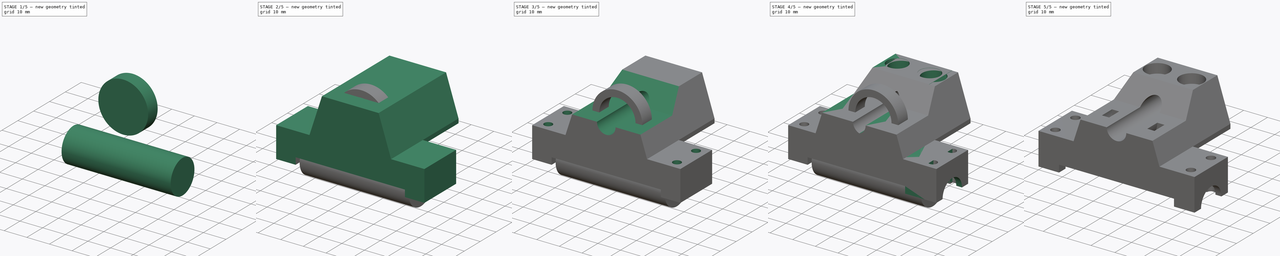
[diagram: build sequence overview — one tinted view per stage of 5, left to right]
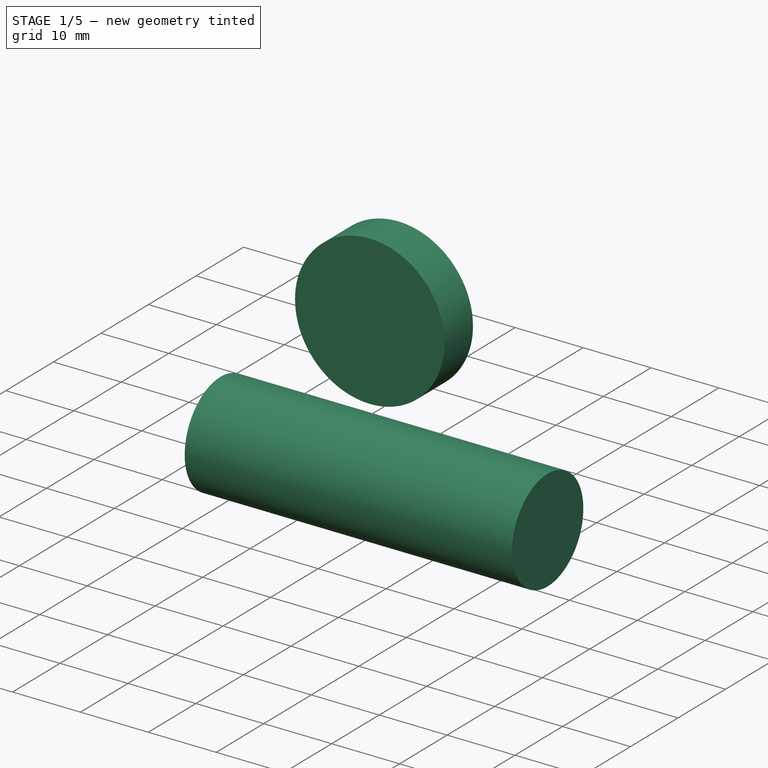
[diagram: stage 1 of 5 — iso view after this stage's code; geometry added in this stage tinted green]
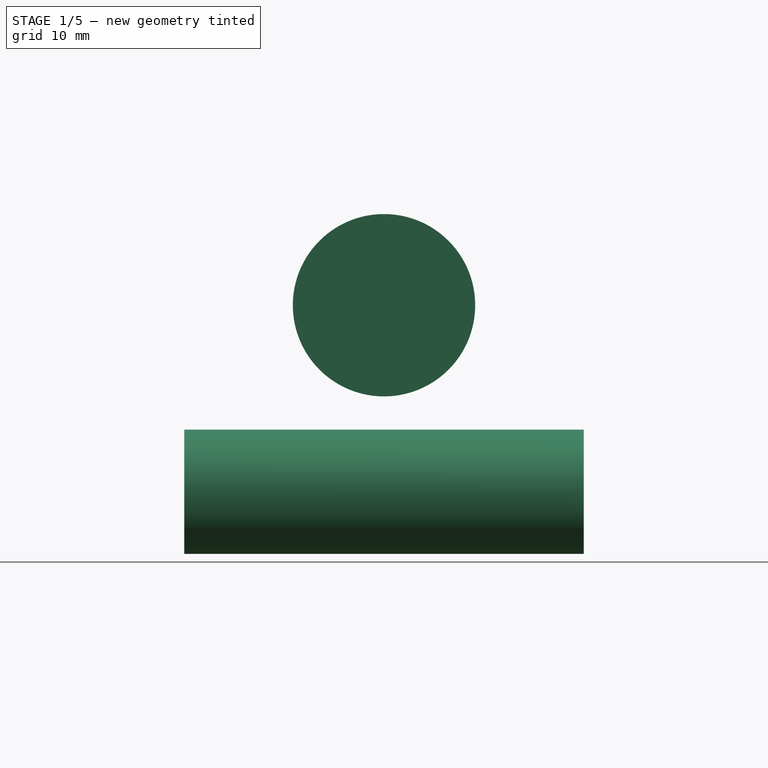
[diagram: stage 1 of 5 — front view after this stage's code; geometry added in this stage tinted green]
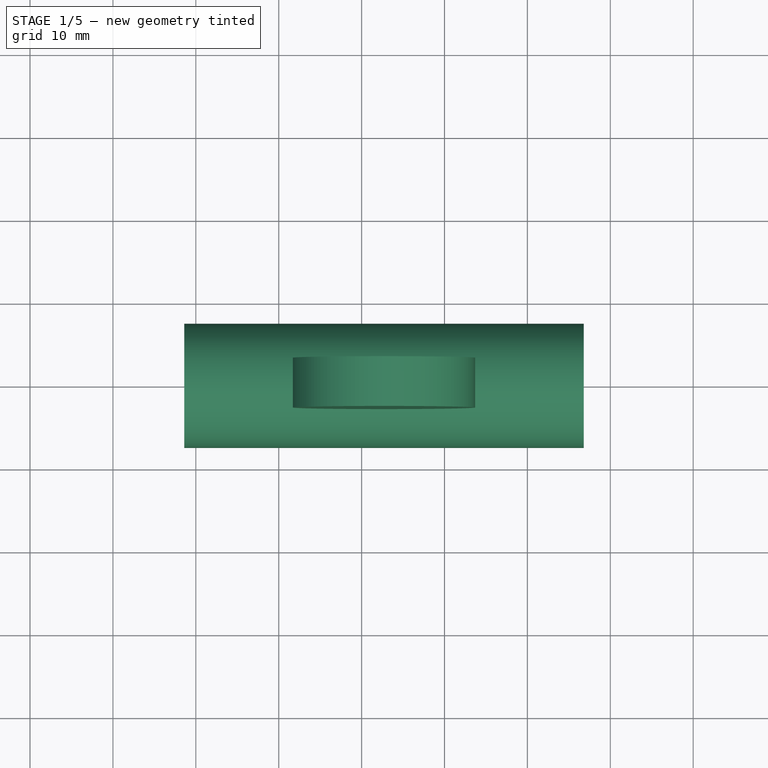
[diagram: stage 1 of 5 — top view after this stage's code; geometry added in this stage tinted green]
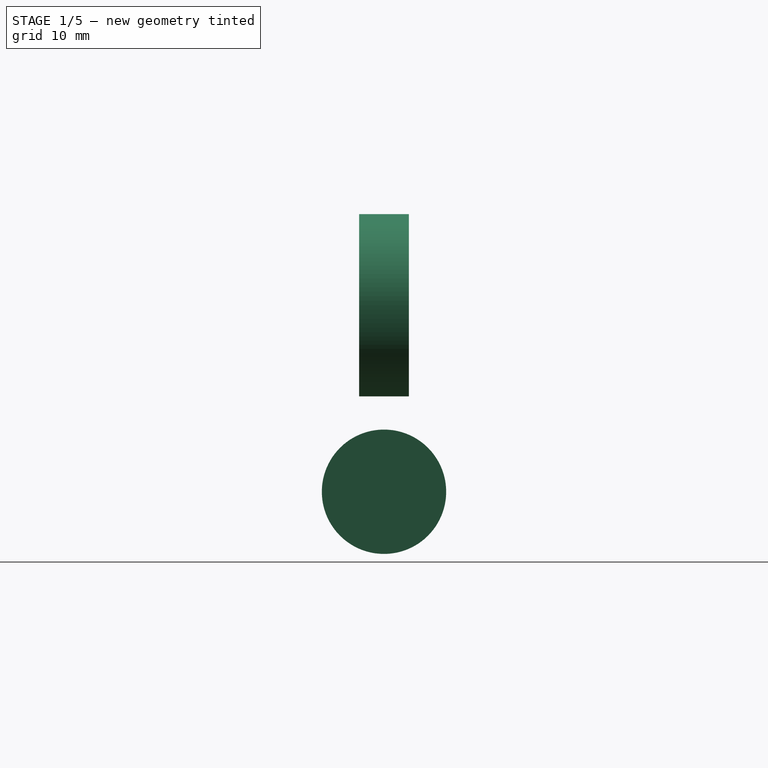
[diagram: stage 1 of 5 — right view after this stage's code; geometry added in this stage tinted green]
FCSTD DOCUMENT  (FreeCAD 0.16R6712 (Git))
Label: CustomBushingXYBlock_LM8UU
License: CC-BY 3.0
LicenseURL: http://creativecommons.org/licenses/by/3.0/
objects: Sketcher::SketchObject×8, PartDesign::Pocket×7, Part::Cylinder×3, Part::Cut×3, Part::Feature×1, PartDesign::Pad×1, Part::FeaturePython×1
note: 32 computed .brp shape members not serialized (recipe doc carries the construction recipe); baked Part::Feature solids carry a one-line shape summary decoded from their .brp

FEATURE [Part::Cylinder] Cylinder  label="Zylinder"
  Angle = 360
  Height = 6
  Placement = pos=(32.7,13,22.5) rot=(1,0,0;1.5708rad)
  Radius = 11
FEATURE [Part::Cylinder] Cylinder001  label="Zylinder001"
  Angle = 360
  Height = 6
  Placement = pos=(32.7,13,22.5) rot=(1,0,0;1.5708rad)
  Radius = 8
FEATURE [Part::Cylinder] Cylinder002  label="Zylinder002"
  Angle = 360
  Height = 48.2
  Placement = pos=(8.6,10,0) rot=(0,1,0;1.5708rad)
  Radius = 7.5
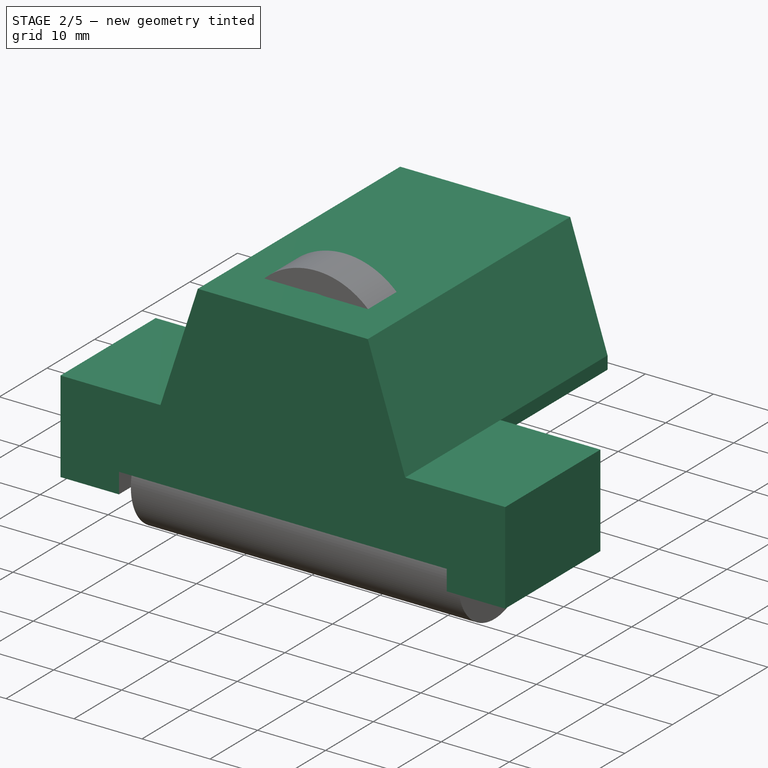
[diagram: stage 2 of 5 — iso view after this stage's code; geometry added in this stage tinted green]
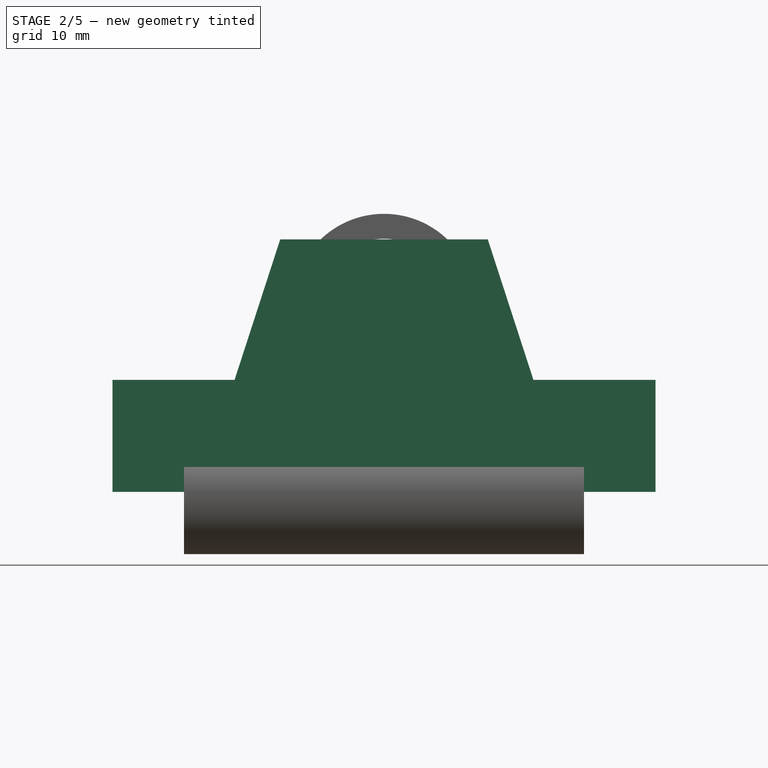
[diagram: stage 2 of 5 — front view after this stage's code; geometry added in this stage tinted green]
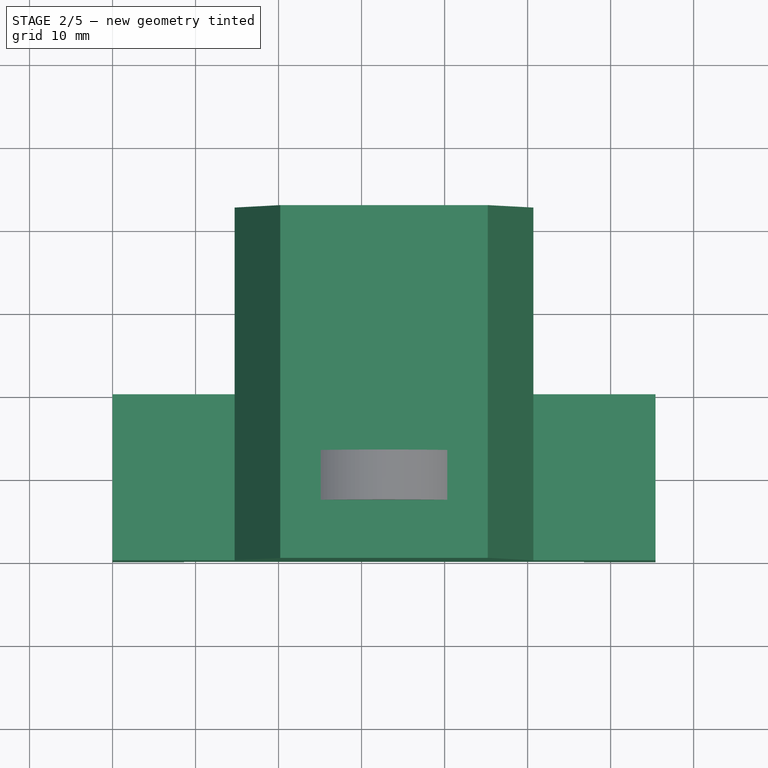
[diagram: stage 2 of 5 — top view after this stage's code; geometry added in this stage tinted green]
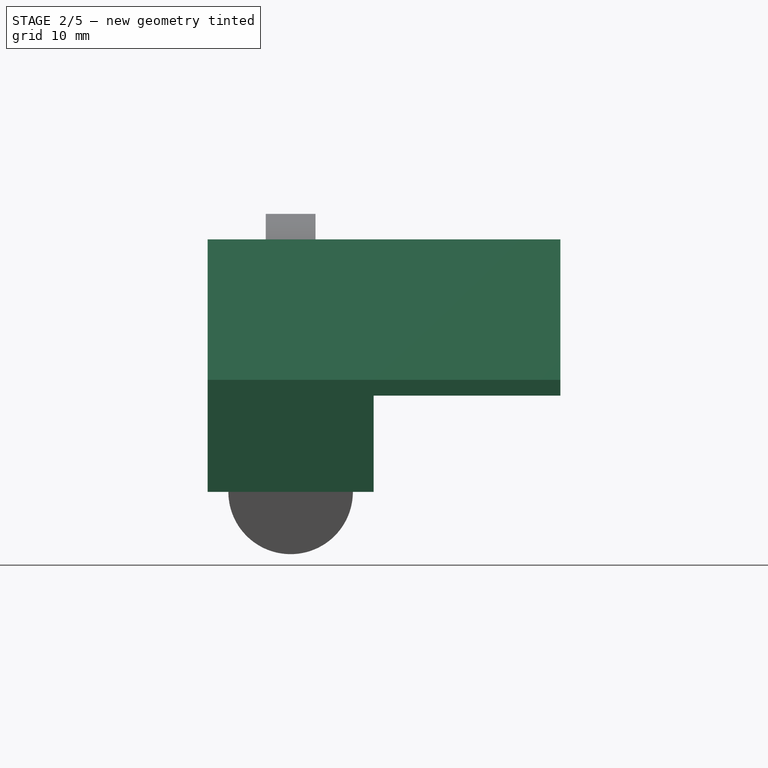
[diagram: stage 2 of 5 — right view after this stage's code; geometry added in this stage tinted green]
FEATURE [Part::Feature] Solid  label="CustomBushingXYBlockFromSTL"
  shape: bbox 60.2 x 42.5 x 30.5 mm, 736 faces (baked)
FEATURE [Sketcher::SketchObject] Sketch
  Placement = pos=(0,0,0) rot=(1,0,0;1.5708rad)
  sketch-geometry (13):
    g0: LineSegment StartX=0 StartY=0 StartZ=0 EndX=0 EndY=13.5 EndZ=0
    g1: LineSegment StartX=0 StartY=13.5 StartZ=0 EndX=14.7 EndY=13.5 EndZ=0
    g2: LineSegment StartX=14.7 StartY=13.5 StartZ=0 EndX=20.2 EndY=30.4273 EndZ=0
    g3: LineSegment StartX=20.2 StartY=30.4273 StartZ=0 EndX=45.2 EndY=30.4273 EndZ=0
    g4: LineSegment StartX=45.2 StartY=30.4273 StartZ=0 EndX=50.7 EndY=13.5 EndZ=0
    g5: LineSegment StartX=50.7 StartY=13.5 StartZ=0 EndX=65.4 EndY=13.5 EndZ=0
    g6: LineSegment StartX=65.4 StartY=13.5 StartZ=0 EndX=65.4 EndY=-2e-12 EndZ=0
    g7: LineSegment StartX=65.4 StartY=-2e-12 StartZ=0 EndX=56.8 EndY=-2e-12 EndZ=0
    g8: LineSegment StartX=56.8 StartY=-2e-12 StartZ=0 EndX=56.8 EndY=3 EndZ=0
    g9: LineSegment StartX=56.8 StartY=3 StartZ=0 EndX=8.6 EndY=3 EndZ=0
    g10: LineSegment StartX=8.6 StartY=3 StartZ=0 EndX=8.6 EndY=0 EndZ=0
    g11: LineSegment StartX=8.6 StartY=0 StartZ=0 EndX=0 EndY=0 EndZ=0
    g12: LineSegment [constr] StartX=32.7 StartY=30.4273 StartZ=0 EndX=32.7 EndY=0 EndZ=0
  constraints (37):
    c: Coincident(g0,g1)
    c: Coincident(g1,g2)
    c: Coincident(g2,g3)
    c: Coincident(g3,g4)
    c: Coincident(g4,g5)
    c: Coincident(g5,g6)
    c: Coincident(g6,g7)
    c: Coincident(g7,g8)
    c: Coincident(g8,g9)
    c: Coincident(g9,g10)
    c: Coincident(g10,g11)
    c: Coincident(g0,g11)
    c: Horizontal(g11)
    c: Horizontal(g9)
    c: Horizontal(g1)
    c: Vertical(g10)
    c: Vertical(g0)
    c: Horizontal(g5)
    c: Horizontal(g3)
    c: Horizontal(g7)
    c: Vertical(g6)
    c: Vertical(g8)
    c: Angle(g2,g1) = 1.88496
    c: Angle(g5,g4) = 1.88496
    c: DistanceX(g-1,g6) = 65.4
    c: Distance(g9) = 48.2
    c: Distance(g10) = 3
    c: DistanceX(g1,g4) = 36
    c: Distance(g3) = 25
    c: DistanceY(g0) = 13.5
    c: Coincident(g0,g-1)
    c: PointOnObject(g12,g-1)
    c: PointOnObject(g12,g3)
    c: Symmetric(g-1,g6,g12)
    c: Symmetric(g1,g4,g12)
    c: Symmetric(g2,g3,g12)
    c: Symmetric(g9,g8,g12)
FEATURE [PartDesign::Pad] Pad
  Length = 42.5
  Length2 = 100
  Placement = pos=(0,0,0) rot=(1,0,0;1.5708rad)
  Reversed = true
  Sketch = -> Sketch
  Type = 0
FEATURE [PartDesign::Pocket] Pocket
  Length = 22.5
  Placement = pos=(0,0,0) rot=(1,0,0;1.5708rad)
  Sketch = -> Sketch001
  Type = 0
FEATURE [Part::Cut] Cut
  Base = -> Cylinder
  Tool = -> Cylinder001
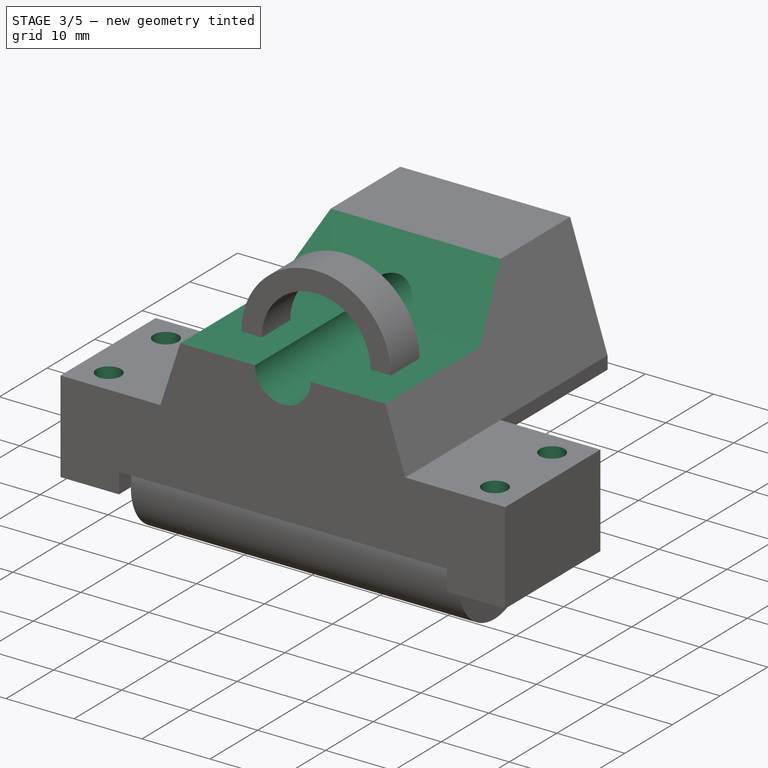
[diagram: stage 3 of 5 — iso view after this stage's code; geometry added in this stage tinted green]
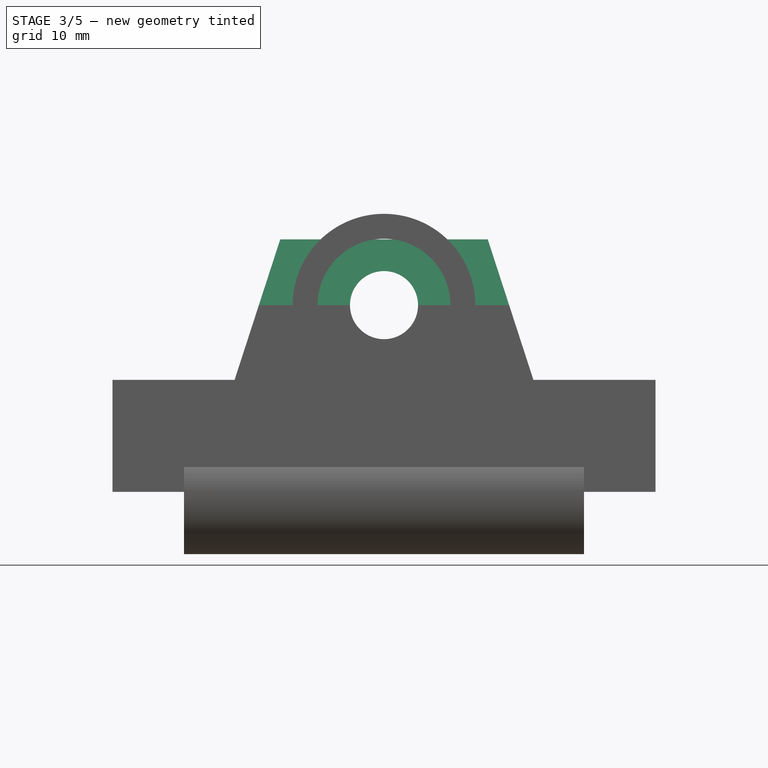
[diagram: stage 3 of 5 — front view after this stage's code; geometry added in this stage tinted green]
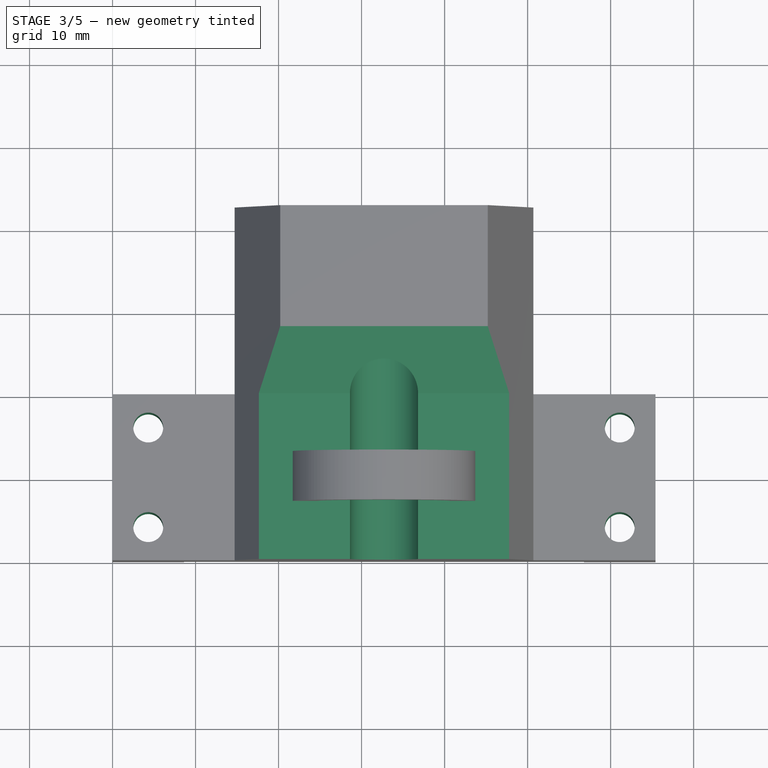
[diagram: stage 3 of 5 — top view after this stage's code; geometry added in this stage tinted green]
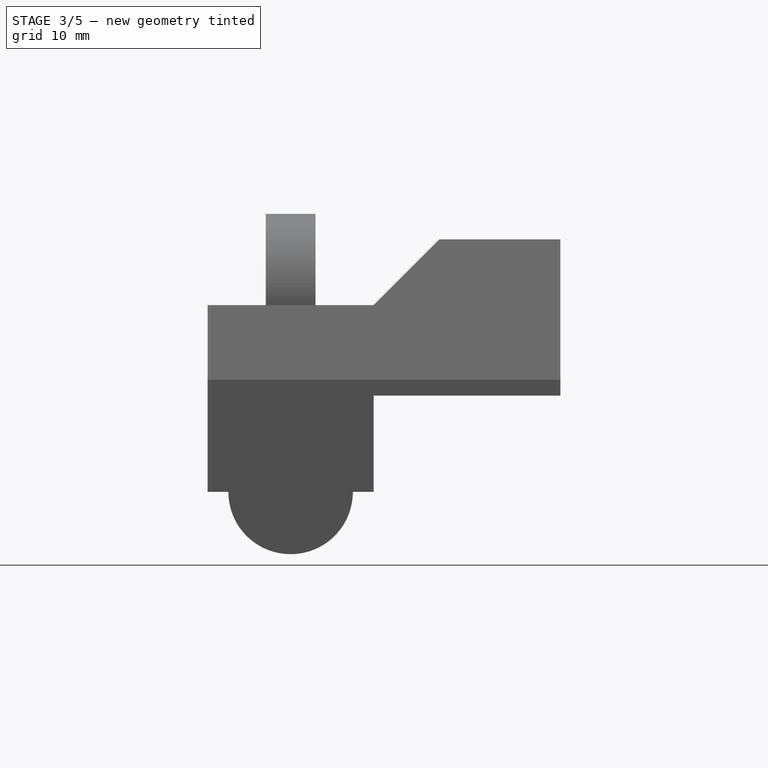
[diagram: stage 3 of 5 — right view after this stage's code; geometry added in this stage tinted green]
FEATURE [Sketcher::SketchObject] Sketch002
  Placement = pos=(0,0,0) rot=(0.707107,0,-0.707107;3.14159rad)
  Support = -> Pocket [Face1]
  sketch-geometry (4):
    g0: LineSegment StartX=-22.5 StartY=-19.9882 StartZ=0 EndX=-22.5 EndY=1.01176 EndZ=0
    g1: LineSegment StartX=-22.5 StartY=-19.9882 StartZ=0 EndX=-30.5438 EndY=-28.032 EndZ=0
    g2: LineSegment StartX=-30.5438 StartY=-28.032 StartZ=0 EndX=-30.5438 EndY=1.01176 EndZ=0
    g3: LineSegment StartX=-30.5438 StartY=1.01176 StartZ=0 EndX=-22.5 EndY=1.01176 EndZ=0
  constraints (10):
    c: Vertical(g0)
    c: Coincident(g0,g1)
    c: Coincident(g1,g2)
    c: Vertical(g2)
    c: Coincident(g2,g3)
    c: Horizontal(g3)
    c: Coincident(g0,g3)
    c: DistanceX(g-1,g0) = -22.5
    c: Angle(g0,g1) = 2.35619
    c: Distance(g0) = 21
FEATURE [PartDesign::Pocket] Pocket001
  Length = 60
  Placement = pos=(0,0,0) rot=(1,0,0;1.5708rad)
  Sketch = -> Sketch002
  Type = 0
FEATURE [Sketcher::SketchObject] Sketch003
  ExternalGeometry = -> [Pocket001]
  Placement = pos=(0,0,0) rot=(1,0,0;1.5708rad)
  Support = -> Pocket001 [Face2]
  sketch-geometry (1):
    g0: Circle CenterX=32.7 CenterY=22.5 CenterZ=0 NormalX=0 NormalY=0 NormalZ=1 Radius=4.1
  constraints (3):
    c: PointOnObject(g0,g-3)
    c: Symmetric(g-3,g-3,g0)
    c: Radius(g0) = 4.1
FEATURE [PartDesign::Pocket] Pocket002
  Length = 5
  Placement = pos=(0,0,0) rot=(1,0,0;1.5708rad)
  Sketch = -> Sketch003
  Type = 1
FEATURE [Sketcher::SketchObject] Sketch004
  Placement = pos=(0,0,13.5) rot=(0,0,1;3.14159rad)
  Support = -> Pocket002 [Face3]
  sketch-geometry (6):
    g0: LineSegment [constr] StartX=-4.3 StartY=-19.8898 StartZ=0 EndX=-4.3 EndY=0 EndZ=0
    g1: LineSegment [constr] StartX=-61.1 StartY=-19.9384 StartZ=0 EndX=-61.1 EndY=0.011165 EndZ=0
    g2: Circle CenterX=-4.3 CenterY=-16 CenterZ=0 NormalX=0 NormalY=0 NormalZ=1 Radius=1.8
    g3: Circle CenterX=-4.3 CenterY=-4 CenterZ=0 NormalX=0 NormalY=0 NormalZ=1 Radius=1.8
    g4: Circle CenterX=-61.1 CenterY=-16 CenterZ=0 NormalX=0 NormalY=0 NormalZ=1 Radius=1.8
    g5: Circle CenterX=-61.1 CenterY=-4 CenterZ=0 NormalX=0 NormalY=0 NormalZ=1 Radius=1.8
  constraints (17):
    c: PointOnObject(g0,g-1)
    c: Vertical(g0)
    c: DistanceX(g-1,g0) = -4.3
    c: Vertical(g1)
    c: DistanceX(g-1,g1) = -61.1
    c: PointOnObject(g2,g0)
    c: PointOnObject(g3,g0)
    c: DistanceY(g3,g0) = 4
    c: Radius(g3) = 1.8
    c: DistanceY(g3,g2) = -12
    c: Radius(g2) = 1.8
    c: PointOnObject(g4,g1)
    c: PointOnObject(g5,g1)
    c: Radius(g4) = 1.8
    c: Radius(g5) = 1.8
    c: DistanceY(g4,g5) = 12
    c: DistanceY(g5,g0) = 4
FEATURE [PartDesign::Pocket] Pocket003
  Length = 5
  Placement = pos=(0,0,0) rot=(1,0,0;1.5708rad)
  Sketch = -> Sketch004
  Type = 1
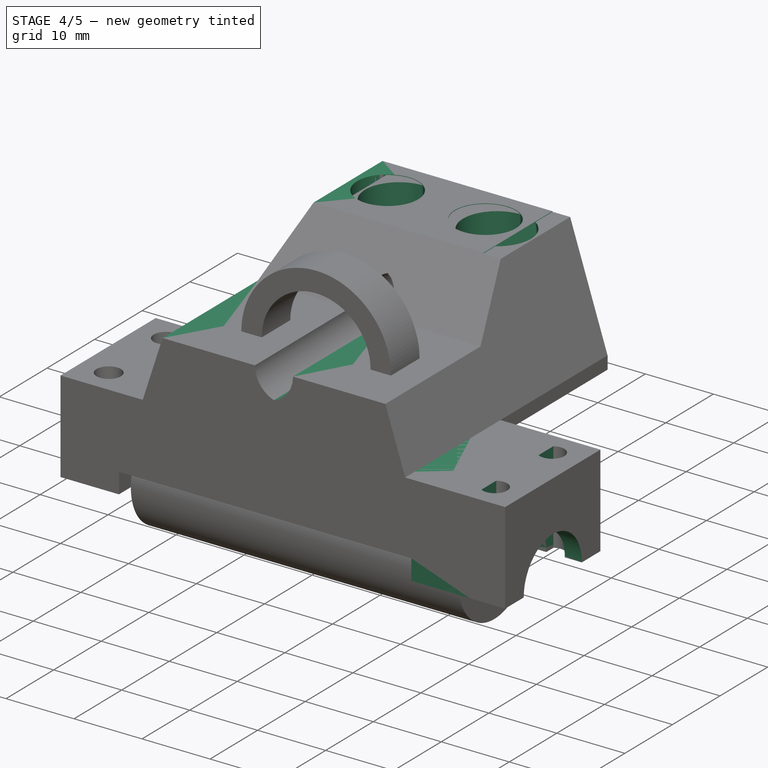
[diagram: stage 4 of 5 — iso view after this stage's code; geometry added in this stage tinted green]
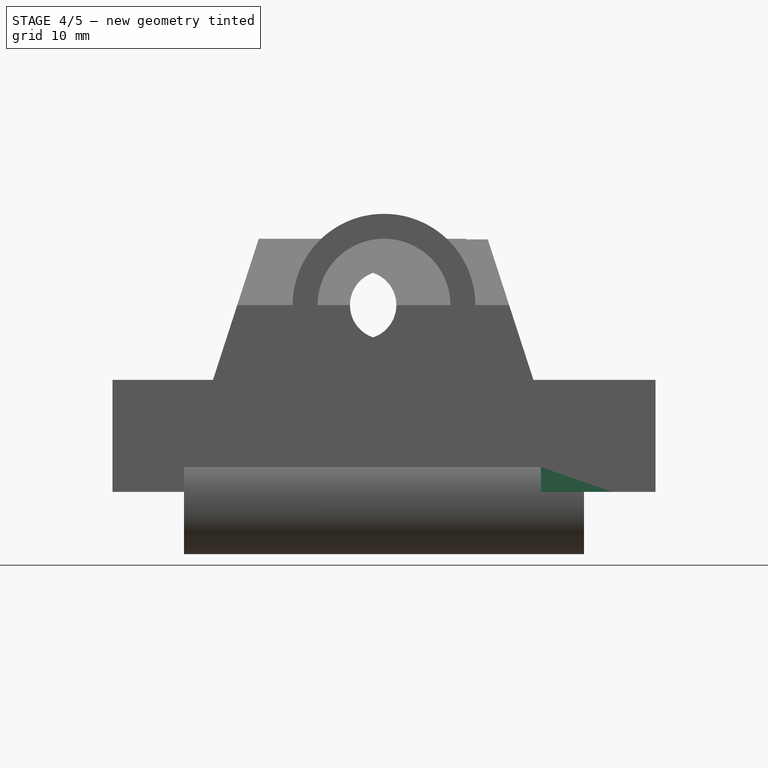
[diagram: stage 4 of 5 — front view after this stage's code; geometry added in this stage tinted green]
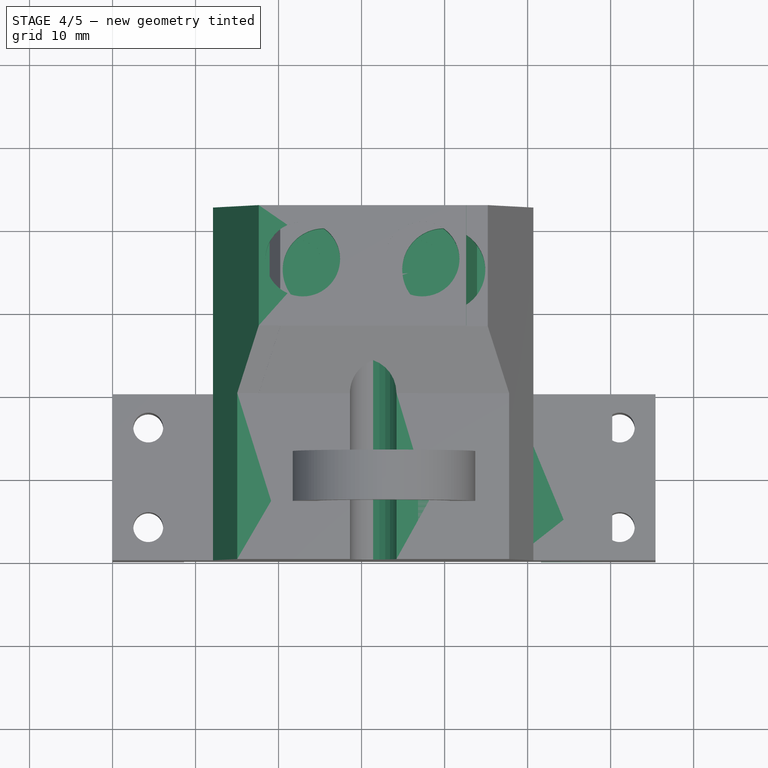
[diagram: stage 4 of 5 — top view after this stage's code; geometry added in this stage tinted green]
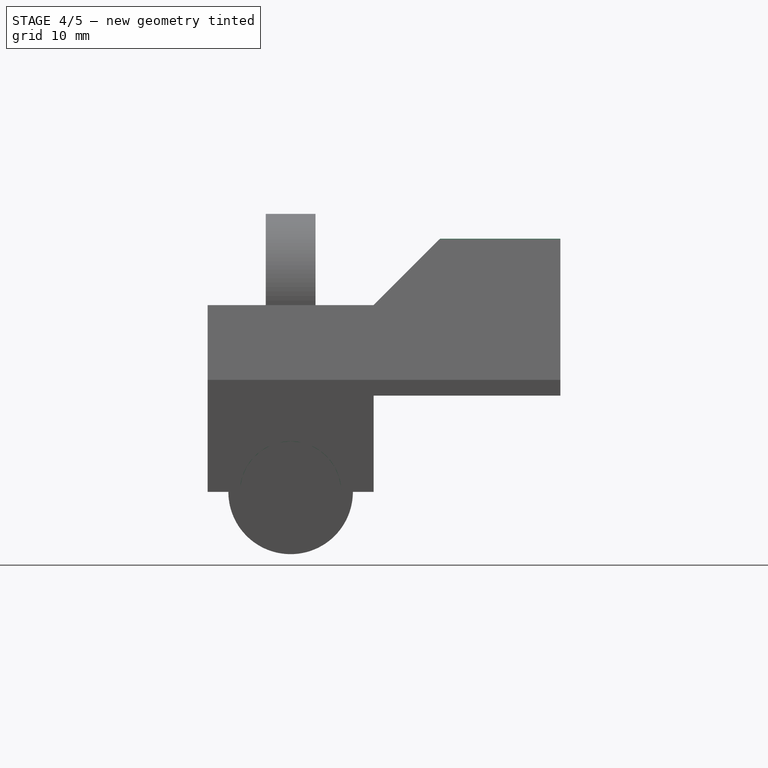
[diagram: stage 4 of 5 — right view after this stage's code; geometry added in this stage tinted green]
FEATURE [Sketcher::SketchObject] Sketch001
  ExternalGeometry = -> [Pad]
  Placement = pos=(0,42.5,0) rot=(-1,0,0;1.5708rad)
  Support = -> Pad [Face14]
  sketch-geometry (9):
    g0: LineSegment StartX=14.7 StartY=-11.6 StartZ=0 EndX=50.7 EndY=-11.6 EndZ=0
    g1: LineSegment [constr] StartX=32.7 StartY=-3 StartZ=0 EndX=32.7 EndY=-30.4273 EndZ=0
    g2: LineSegment StartX=50.7 StartY=-11.6 StartZ=0 EndX=50.7 EndY=-23.0375 EndZ=0
    g3: LineSegment StartX=50.7 StartY=-23.0375 StartZ=0 EndX=69.9463 EndY=-23.0375 EndZ=0
    g4: LineSegment StartX=69.9463 StartY=-23.0375 StartZ=0 EndX=69.9463 EndY=4.37449 EndZ=0
    g5: LineSegment StartX=69.9463 StartY=4.37449 StartZ=0 EndX=-2.20205 EndY=4.37449 EndZ=0
    g6: LineSegment StartX=-2.20205 StartY=4.37449 StartZ=0 EndX=-2.20205 EndY=-25.6277 EndZ=0
    g7: LineSegment StartX=-2.20205 StartY=-25.6277 StartZ=0 EndX=14.7 EndY=-25.6277 EndZ=0
    g8: LineSegment StartX=14.7 StartY=-25.6277 StartZ=0 EndX=14.7 EndY=-11.6 EndZ=0
  constraints (22):
    c: Horizontal(g0)
    c: Distance(g0) = 36
    c: PointOnObject(g1,g-3)
    c: PointOnObject(g1,g-4)
    c: Symmetric(g-4,g-4,g1)
    c: Symmetric(g0,g0,g1)
    c: DistanceY(g0,g-3) = 8.6
    c: Coincident(g0,g2)
    c: Vertical(g2)
    c: Coincident(g2,g3)
    c: Horizontal(g3)
    c: Coincident(g3,g4)
    c: Vertical(g4)
    c: Coincident(g4,g5)
    c: Horizontal(g5)
    c: Coincident(g5,g6)
    c: Vertical(g6)
    c: Coincident(g6,g7)
    c: Horizontal(g7)
    c: Coincident(g7,g8)
    c: Coincident(g8,g0)
    c: Vertical(g8)
FEATURE [Part::FeaturePython] refine  label="refine_CustomBushingXYBlockFromSTL"  # WARN: FeaturePython — macro-defined, semantics opaque (R4)
  Base = -> Solid
FEATURE [Sketcher::SketchObject] Sketch005
  Placement = pos=(0,0,0) rot=(0.707107,0,-0.707107;3.14159rad)
  Support = -> Pocket003 [Face1]
  sketch-geometry (1):
    g0: Circle CenterX=0 CenterY=-10 CenterZ=0 NormalX=0 NormalY=0 NormalZ=1 Radius=6.1
  constraints (3):
    c: PointOnObject(g0,g-2)
    c: DistanceY(g-1,g0) = -10
    c: Radius(g0) = 6.1
FEATURE [PartDesign::Pocket] Pocket004
  Length = 5
  Placement = pos=(0,0,0) rot=(1,0,0;1.5708rad)
  Sketch = -> Sketch005
  Type = 1
FEATURE [Sketcher::SketchObject] Sketch006
  ExternalGeometry = -> [Pocket004]
  Placement = pos=(0,0,30.4273) rot=(0,0,1;3.14159rad)
  Support = -> Pocket004 [Face31]
  sketch-geometry (2):
    g0: Circle CenterX=-25.5 CenterY=-34.7 CenterZ=0 NormalX=0 NormalY=0 NormalZ=1 Radius=5
    g1: Circle CenterX=-39.9 CenterY=-34.7 CenterZ=0 NormalX=0 NormalY=0 NormalZ=1 Radius=5
  constraints (6):
    c: Radius(g1) = 5
    c: Radius(g0) = 5
    c: DistanceX(g1,g-5) = -5.3
    c: DistanceX(g0,g-4) = 5.3
    c: DistanceY(g1,g-5) = -7.8
    c: DistanceY(g0,g-4) = -7.8
FEATURE [PartDesign::Pocket] Pocket005
  Length = 4
  Placement = pos=(0,0,0) rot=(1,0,0;1.5708rad)
  Sketch = -> Sketch006
  Type = 0
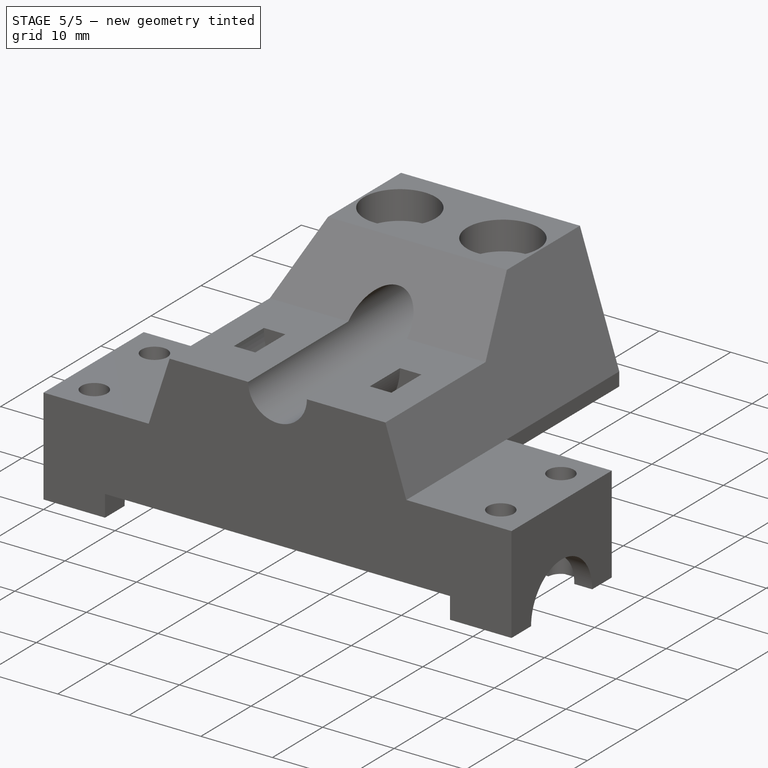
[diagram: stage 5 of 5 — iso view after this stage's code; geometry added in this stage tinted green]
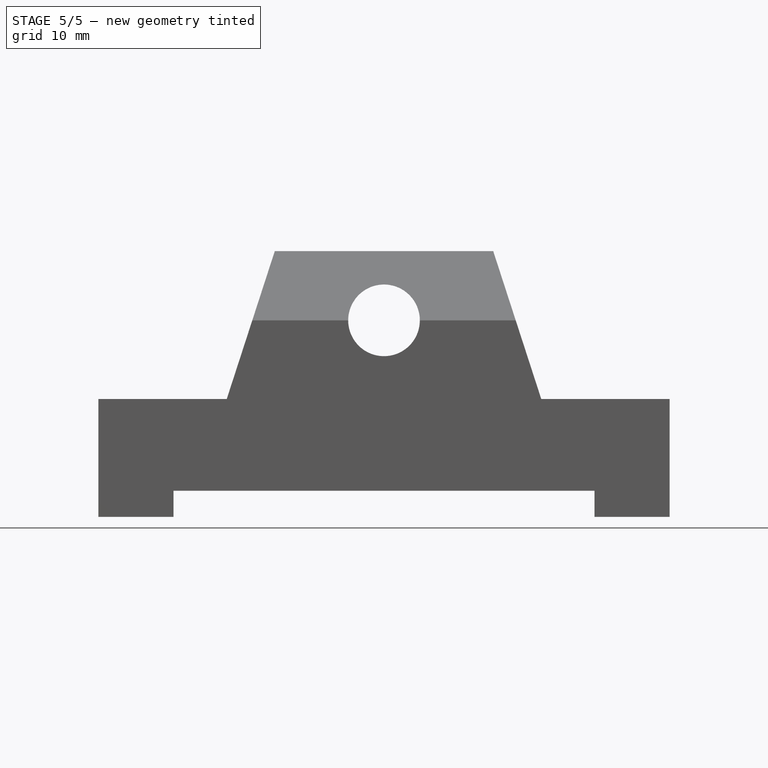
[diagram: stage 5 of 5 — front view after this stage's code; geometry added in this stage tinted green]
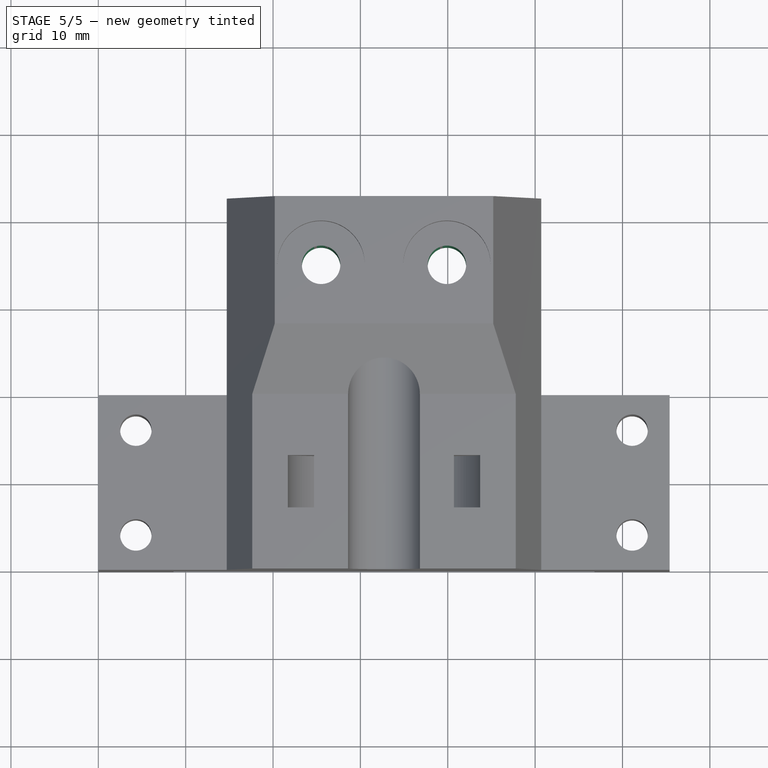
[diagram: stage 5 of 5 — top view after this stage's code; geometry added in this stage tinted green]
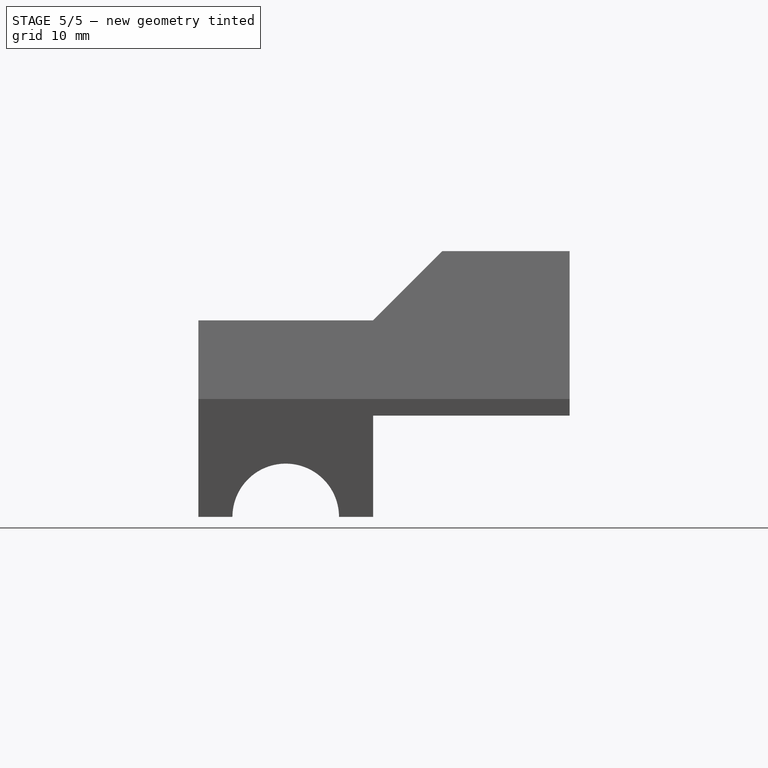
[diagram: stage 5 of 5 — right view after this stage's code; geometry added in this stage tinted green]
FEATURE [Sketcher::SketchObject] Sketch007
  ExternalGeometry = -> [refine,Pocket005]
  Placement = pos=(0,0,26.4273) rot=(0,0,1;3.14159rad)
  Support = -> Pocket005 [Face36]
  sketch-geometry (2):
    g0: Circle CenterX=-25.5 CenterY=-34.7 CenterZ=0 NormalX=0 NormalY=0 NormalZ=1 Radius=2.2
    g1: Circle CenterX=-39.9 CenterY=-34.7 CenterZ=0 NormalX=0 NormalY=0 NormalZ=1 Radius=2.2
  constraints (4):
    c: Radius(g0) = 2.2
    c: Radius(g1) = 2.2
    c: Coincident(g-4,g1)
    c: Coincident(g-5,g0)
FEATURE [PartDesign::Pocket] Pocket006
  Length = 5
  Placement = pos=(0,0,0) rot=(1,0,0;1.5708rad)
  Sketch = -> Sketch007
  Type = 1
FEATURE [Part::Cut] Cut001
  Base = -> Pocket006
  Tool = -> Cut
FEATURE [Part::Cut] Cut002
  Base = -> Cut001
  Tool = -> Cylinder002
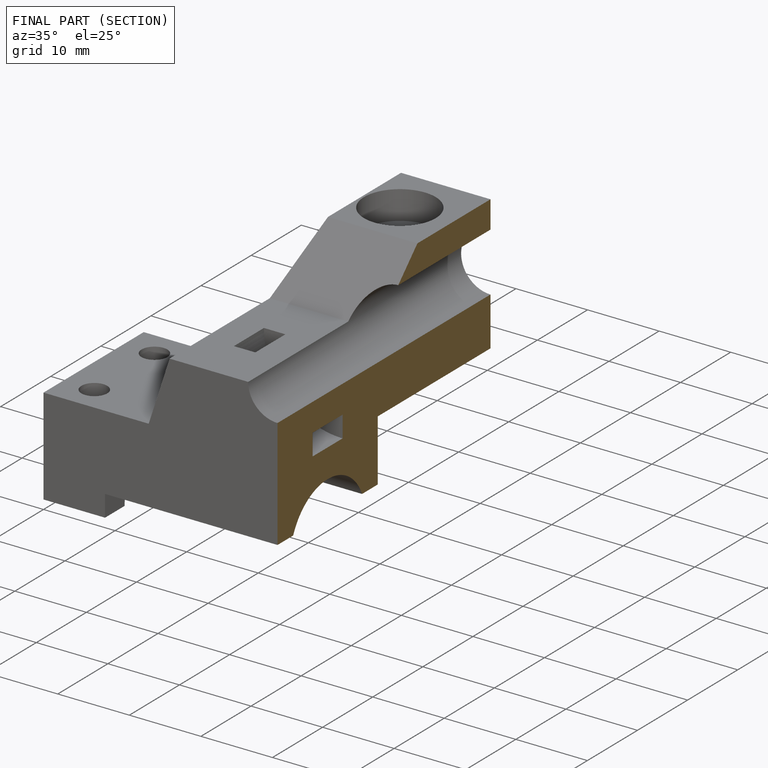
[diagram: finished part — half-section view (interior)]
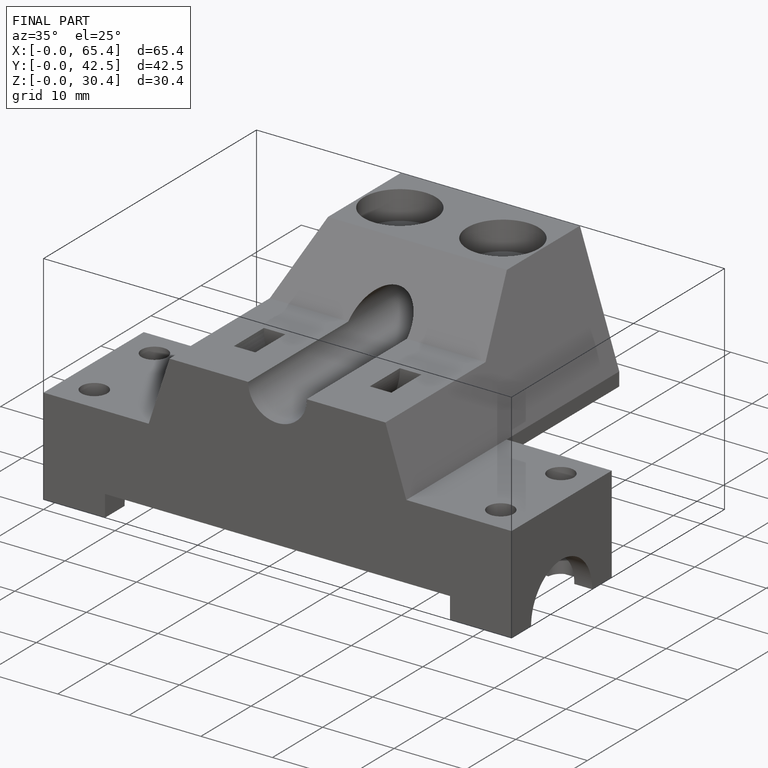
[diagram: finished part — iso view with bounding-box wireframe]
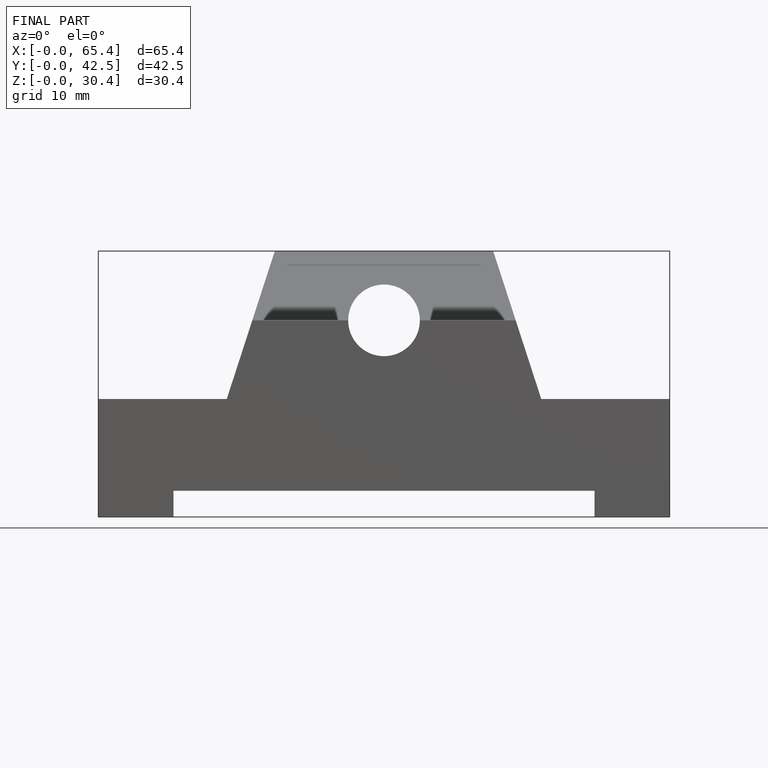
[diagram: finished part — front view with bounding-box wireframe]
